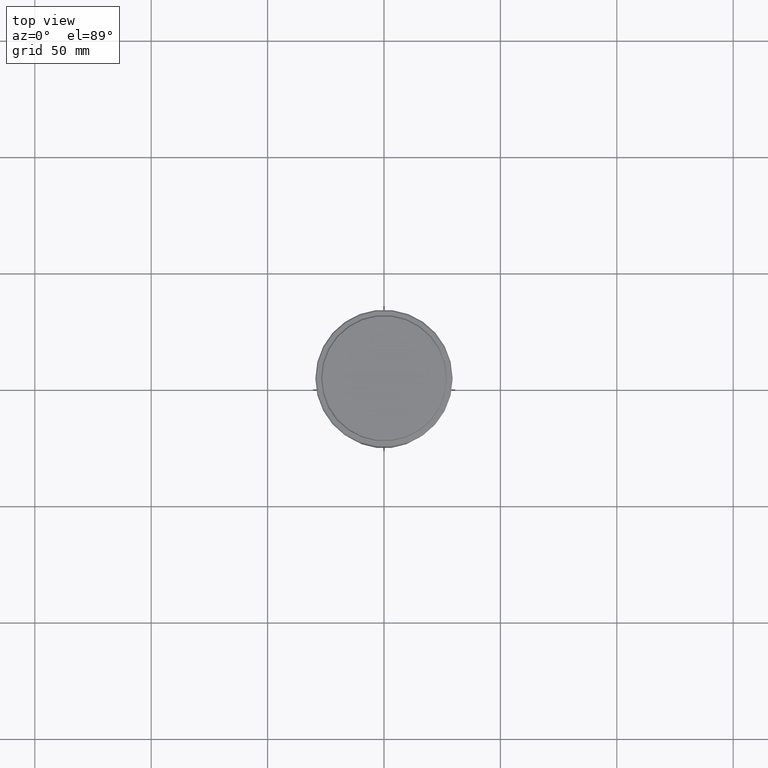
[diagram: clean part render]
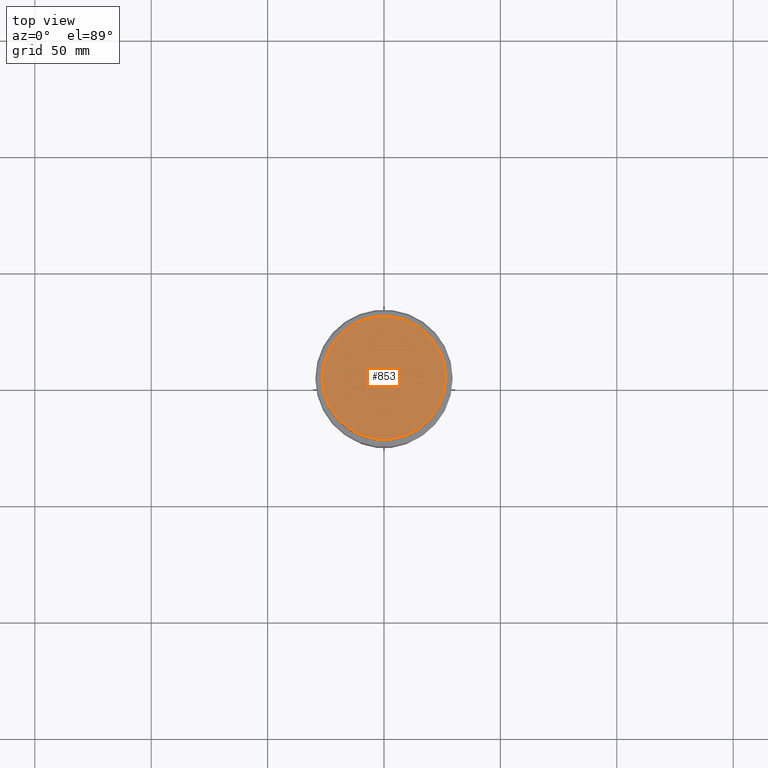
[diagram: same view with one face highlighted and labeled with its STEP entity id]
A machine part, top view. The second image highlights one B-rep face of the part: STEP entity #853.
In plain terms, the highlighted planar face has unit normal (0, -0, 1).
Its self-contained STEP definition (entity closure, byte-faithful):
#17 = CARTESIAN_POINT ( 'NONE',  ( 0.000000000000000000, 0.000000000000000000, 0.000000000000000000 ) ) ;
#183 = DIRECTION ( 'NONE',  ( 0.000000000000000000, -0.000000000000000000, 1.000000000000000000 ) ) ;
#303 = AXIS2_PLACEMENT_3D ( 'NONE', #1073, #522, #967 ) ;
#522 = DIRECTION ( 'NONE',  ( -0.000000000000000000, -0.000000000000000000, 1.000000000000000000 ) ) ;
#529 = PLANE ( 'NONE',  #591 ) ;
#591 = AXIS2_PLACEMENT_3D ( 'NONE', #1295, #183, #976 ) ;
#640 = ORIENTED_EDGE ( 'NONE', *, *, #781, .T. ) ;
#770 = FACE_OUTER_BOUND ( 'NONE', #1129, .T. ) ;
#776 = DIRECTION ( 'NONE',  ( -0.000000000000000000, -0.000000000000000000, 1.000000000000000000 ) ) ;
#781 = EDGE_CURVE ( 'NONE', #1163, #1234, #1333, .T. ) ;
#794 = ORIENTED_EDGE ( 'NONE', *, *, #1142, .T. ) ;
#808 = CIRCLE ( 'NONE', #303, 26.50000000000002487 ) ;
#853 = ADVANCED_FACE ( 'NONE', ( #770 ), #529, .T. ) ;
#967 = DIRECTION ( 'NONE',  ( 1.000000000000000000, 0.000000000000000000, 0.000000000000000000 ) ) ;
#976 = DIRECTION ( 'NONE',  ( 1.000000000000000000, 0.000000000000000000, 0.000000000000000000 ) ) ;
#992 = AXIS2_PLACEMENT_3D ( 'NONE', #17, #776, #1020 ) ;
#1020 = DIRECTION ( 'NONE',  ( 1.000000000000000000, 0.000000000000000000, 0.000000000000000000 ) ) ;
#1073 = CARTESIAN_POINT ( 'NONE',  ( 0.000000000000000000, 0.000000000000000000, 0.000000000000000000 ) ) ;
#1129 = EDGE_LOOP ( 'NONE', ( #640, #794 ) ) ;
#1142 = EDGE_CURVE ( 'NONE', #1234, #1163, #808, .T. ) ;
#1163 = VERTEX_POINT ( 'NONE', #1206 ) ;
#1206 = CARTESIAN_POINT ( 'NONE',  ( -26.50000000000002487, 0.000000000000000000, 0.000000000000000000 ) ) ;
#1234 = VERTEX_POINT ( 'NONE', #1332 ) ;
#1295 = CARTESIAN_POINT ( 'NONE',  ( 0.000000000000000000, 0.000000000000000000, 0.000000000000000000 ) ) ;
#1332 = CARTESIAN_POINT ( 'NONE',  ( 26.50000000000002487, 3.275930187719171524E-15, 0.000000000000000000 ) ) ;
#1333 = CIRCLE ( 'NONE', #992, 26.50000000000002487 ) ;